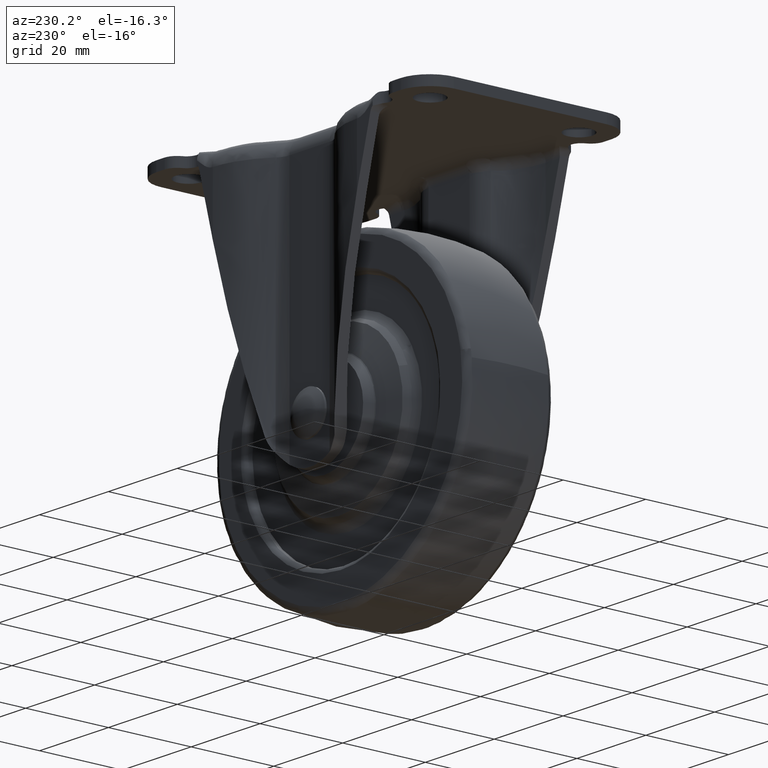
[diagram: clean part render]
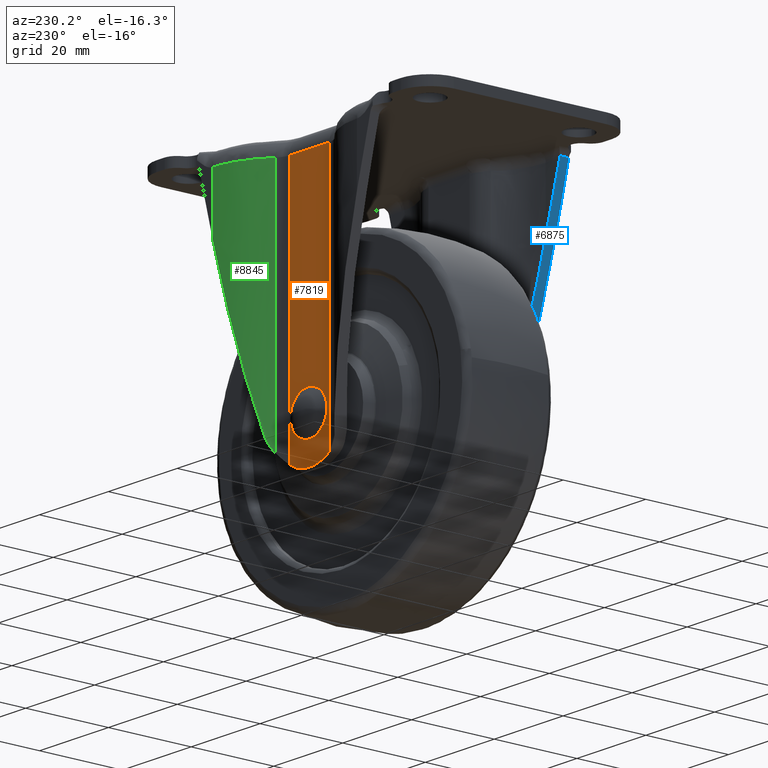
[diagram: same view with three faces highlighted in distinct colors, each labeled with its STEP entity id]
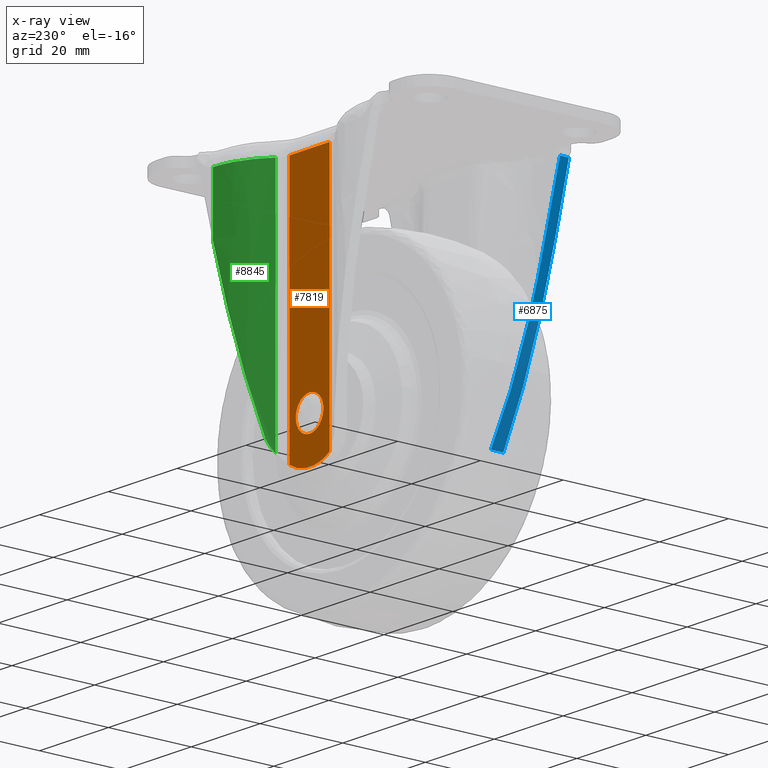
[diagram: x-ray of the same camera — body ghosted, the three highlighted faces saturated]
A machine part, auxiliary view with three faces highlighted in distinct colors.
The next image is the same camera in x-ray (body ghosted, the three faces saturated) — at least one of them is partly hidden behind the body in this view.
Their STEP definitions:

[orange] entity #7819 — the highlighted face is a freeform B-spline surface patch.
#3671=CARTESIAN_POINT('',(-3.999847692253771,18.0,-55.534906142327422));
#3672=VERTEX_POINT('',#3671);
#3678=CARTESIAN_POINT('',(0.0,18.0,-51.500000000000007));
#3679=VERTEX_POINT('',#3678);
#3680=CARTESIAN_POINT('',(0.0,18.0,-51.500000000000007));
#3681=CARTESIAN_POINT('',(-4.000000000000000,18.000000000000007,-51.500000000000000));
#3682=CARTESIAN_POINT('',(-4.0,18.0,-55.500000000000000));
#3683=CARTESIAN_POINT('',(-4.000000000000000,17.999999999999996,-55.517453403616734));
#3684=CARTESIAN_POINT('',(-3.999847692253770,18.000000000000004,-55.534906142327415));
#3692=(BOUNDED_CURVE()B_SPLINE_CURVE(2,(#3680,#3681,#3682,#3683,#3684),.UNSPECIFIED.,.F.,.U.)B_SPLINE_CURVE_WITH_KNOTS((3,2,3),(0.500000000000000,0.750000000000000,0.751539894364397),.UNSPECIFIED.)CURVE()GEOMETRIC_REPRESENTATION_ITEM()RATIONAL_B_SPLINE_CURVE((1.0,0.707106781186548,1.0,0.998195901531917,0.996414028032344))REPRESENTATION_ITEM(''));
#3693=EDGE_CURVE('',#3679,#3672,#3692,.T.);
#3695=CARTESIAN_POINT('',(3.969064855288949,18.0,-55.003487991575120));
#3696=VERTEX_POINT('',#3695);
#3697=CARTESIAN_POINT('',(3.969064855288950,18.000000000000007,-55.003487991575120));
#3698=CARTESIAN_POINT('',(3.530794400411641,18.0,-51.500000000000007));
#3699=CARTESIAN_POINT('',(0.0,18.0,-51.500000000000007));
#3707=(BOUNDED_CURVE()B_SPLINE_CURVE(2,(#3697,#3698,#3699),.UNSPECIFIED.,.F.,.U.)B_SPLINE_CURVE_WITH_KNOTS((3,3),(0.271473928979672,0.500000000000000),.UNSPECIFIED.)CURVE()GEOMETRIC_REPRESENTATION_ITEM()RATIONAL_B_SPLINE_CURVE((0.954005430257310,0.732265053904258,1.0))REPRESENTATION_ITEM(''));
#3708=EDGE_CURVE('',#3696,#3679,#3707,.T.);
#3758=CARTESIAN_POINT('',(0.0,18.0,-59.500000000000000));
#3759=VERTEX_POINT('',#3758);
#3760=CARTESIAN_POINT('',(0.0,18.0,-59.500000000000000));
#3761=CARTESIAN_POINT('',(4.000000000000000,18.000000000000007,-59.500000000000007));
#3762=CARTESIAN_POINT('',(4.0,18.0,-55.500000000000000));
#3763=CARTESIAN_POINT('',(4.000000000000001,18.000000000000004,-55.250780289759227));
#3764=CARTESIAN_POINT('',(3.969064855288949,18.0,-55.003487991575128));
#3772=(BOUNDED_CURVE()B_SPLINE_CURVE(2,(#3760,#3761,#3762,#3763,#3764),.UNSPECIFIED.,.F.,.U.)B_SPLINE_CURVE_WITH_KNOTS((3,2,3),(0.0,0.250000000000000,0.271473928979672),.UNSPECIFIED.)CURVE()GEOMETRIC_REPRESENTATION_ITEM()RATIONAL_B_SPLINE_CURVE((1.0,0.707106781186548,1.0,0.974841727282290,0.954005430257310))REPRESENTATION_ITEM(''));
#3773=EDGE_CURVE('',#3759,#3696,#3772,.T.);
#3775=CARTESIAN_POINT('',(-3.999847692253771,18.0,-55.534906142327415));
#3776=CARTESIAN_POINT('',(-3.965244841717835,18.000000000000007,-59.500000000000000));
#3777=CARTESIAN_POINT('',(0.0,18.0,-59.500000000000000));
#3785=(BOUNDED_CURVE()B_SPLINE_CURVE(2,(#3775,#3776,#3777),.UNSPECIFIED.,.F.,.U.)B_SPLINE_CURVE_WITH_KNOTS((3,3),(0.751539894364397,1.0),.UNSPECIFIED.)CURVE()GEOMETRIC_REPRESENTATION_ITEM()RATIONAL_B_SPLINE_CURVE((0.996414028032344,0.708910879654631,1.0))REPRESENTATION_ITEM(''));
#3786=EDGE_CURVE('',#3672,#3759,#3785,.T.);
#5296=CARTESIAN_POINT('',(-5.816739000000100,18.0,-4.300000000000000));
#5297=VERTEX_POINT('',#5296);
#5357=CARTESIAN_POINT('',(5.816738999999900,18.0,-4.300000000000000));
#5358=VERTEX_POINT('',#5357);
#5372=CARTESIAN_POINT('',(-5.816739000000100,18.0,-4.300000000000000));
#5373=CARTESIAN_POINT('',(5.816738999999900,18.0,-4.300000000000000));
#5374=QUASI_UNIFORM_CURVE('',1,(#5372,#5373),.UNSPECIFIED.,.F.,.U.);
#5375=EDGE_CURVE('',#5297,#5358,#5374,.T.);
#7222=CARTESIAN_POINT('',(-5.816739000000100,18.0,-64.241598580915792));
#7223=VERTEX_POINT('',#7222);
#7243=CARTESIAN_POINT('',(5.816738999999900,18.0,-64.241598580915891));
#7244=VERTEX_POINT('',#7243);
#7245=CARTESIAN_POINT('',(5.816738999999922,18.0,-64.241598580915920));
#7246=CARTESIAN_POINT('',(-1.265236E-013,17.999999999999996,-68.112109439349894));
#7247=CARTESIAN_POINT('',(-5.816739000000108,18.0,-64.241598580915806));
#7255=(BOUNDED_CURVE()B_SPLINE_CURVE(2,(#7245,#7246,#7247),.UNSPECIFIED.,.F.,.U.)CURVE()GEOMETRIC_REPRESENTATION_ITEM()QUASI_UNIFORM_CURVE()RATIONAL_B_SPLINE_CURVE((1.0,0.832533207203416,1.0))REPRESENTATION_ITEM(''));
#7256=EDGE_CURVE('',#7244,#7223,#7255,.T.);
#7783=CARTESIAN_POINT('',(5.816738999999900,18.0,-64.241598580915891));
#7784=CARTESIAN_POINT('',(5.816738999999900,18.0,-4.300000000000000));
#7785=QUASI_UNIFORM_CURVE('',1,(#7783,#7784),.UNSPECIFIED.,.F.,.U.);
#7786=EDGE_CURVE('',#7244,#5358,#7785,.T.);
#7798=CARTESIAN_POINT('',(-6.397831312758930,18.0,-1.218085124317845));
#7799=CARTESIAN_POINT('',(-6.397831312758930,18.0,-69.081916435885063));
#7800=CARTESIAN_POINT('',(6.397831520781528,18.0,-1.218085124317845));
#7801=CARTESIAN_POINT('',(6.397831520781529,18.0,-69.081916435885063));
#7802=B_SPLINE_SURFACE_WITH_KNOTS('',1,1,((#7798,#7800),(#7799,#7801)),.UNSPECIFIED.,.F.,.F.,.U.,(2,2),(2,2),(0.0,67.863831311567225),(0.0,12.795662833540460),.UNSPECIFIED.);
#7803=CARTESIAN_POINT('',(-5.816739000000100,18.0,-64.241598580915792));
#7804=CARTESIAN_POINT('',(-5.816739000000100,18.0,-4.300000000000000));
#7805=QUASI_UNIFORM_CURVE('',1,(#7803,#7804),.UNSPECIFIED.,.F.,.U.);
#7806=EDGE_CURVE('',#7223,#5297,#7805,.T.);
#7807=ORIENTED_EDGE('',*,*,#7806,.T.);
#7808=ORIENTED_EDGE('',*,*,#5375,.T.);
#7809=ORIENTED_EDGE('',*,*,#7786,.F.);
#7810=ORIENTED_EDGE('',*,*,#7256,.T.);
#7811=EDGE_LOOP('',(#7807,#7808,#7809,#7810));
#7812=FACE_OUTER_BOUND('',#7811,.T.);
#7813=ORIENTED_EDGE('',*,*,#3693,.T.);
#7814=ORIENTED_EDGE('',*,*,#3786,.T.);
#7815=ORIENTED_EDGE('',*,*,#3773,.T.);
#7816=ORIENTED_EDGE('',*,*,#3708,.T.);
#7817=EDGE_LOOP('',(#7813,#7814,#7815,#7816));
#7818=FACE_BOUND('',#7817,.T.);
#7819=ADVANCED_FACE('',(#7812,#7818),#7802,.F.);

[blue] entity #6875 — the highlighted face is a freeform B-spline surface patch.
#5901=CARTESIAN_POINT('',(-24.865689733738950,-21.801353907066900,-3.777851678252960));
#5902=VERTEX_POINT('',#5901);
#5916=CARTESIAN_POINT('',(-24.865689733738950,-24.0,-3.777851678253065));
#5917=VERTEX_POINT('',#5916);
#5918=CARTESIAN_POINT('',(-24.865689733738950,-24.0,-3.777851678253065));
#5919=CARTESIAN_POINT('',(-24.865689733738950,-21.801353907066900,-3.777851678252960));
#5920=QUASI_UNIFORM_CURVE('',1,(#5918,#5919),.UNSPECIFIED.,.F.,.U.);
#5921=EDGE_CURVE('',#5917,#5902,#5920,.T.);
#6392=CARTESIAN_POINT('',(-24.724472715595699,-21.864674502856349,-4.300000000000195));
#6393=VERTEX_POINT('',#6392);
#6394=CARTESIAN_POINT('',(-24.865689733738940,-21.801353907066890,-3.777851678253054));
#6395=CARTESIAN_POINT('',(-24.796327226925243,-21.867781752027525,-4.034318759920300));
#6396=CARTESIAN_POINT('',(-24.724472715595699,-21.864674502856360,-4.300000000000196));
#6404=(BOUNDED_CURVE()B_SPLINE_CURVE(2,(#6394,#6395,#6396),.UNSPECIFIED.,.F.,.U.)CURVE()GEOMETRIC_REPRESENTATION_ITEM()QUASI_UNIFORM_CURVE()RATIONAL_B_SPLINE_CURVE((1.0,0.991291770013556,1.0))REPRESENTATION_ITEM(''));
#6405=EDGE_CURVE('',#5902,#6393,#6404,.T.);
#6817=CARTESIAN_POINT('',(-9.400090938650175,-24.328992338789131,-60.961727685882821));
#6818=CARTESIAN_POINT('',(-25.601445766011999,-24.328992338789131,-1.057402099881168));
#6819=CARTESIAN_POINT('',(-9.400090938650175,-17.084574019986221,-60.961727685882821));
#6820=CARTESIAN_POINT('',(-25.601445766011999,-17.084574019986221,-1.057402099881168));
#6821=B_SPLINE_SURFACE_WITH_KNOTS('',1,1,((#6817,#6819),(#6818,#6820)),.UNSPECIFIED.,.F.,.F.,.U.,(2,2),(2,2),(0.0,62.056523606755263),(0.0,7.244418318802911),.UNSPECIFIED.);
#6822=CARTESIAN_POINT('',(-20.916408000000100,-24.0,-18.380276063724398));
#6823=VERTEX_POINT('',#6822);
#6824=CARTESIAN_POINT('',(-20.916408000000100,-24.0,-18.380276063724398));
#6825=CARTESIAN_POINT('',(-24.865689733738950,-24.0,-3.777851678253065));
#6826=QUASI_UNIFORM_CURVE('',1,(#6824,#6825),.UNSPECIFIED.,.F.,.U.);
#6827=EDGE_CURVE('',#6823,#5917,#6826,.T.);
#6828=ORIENTED_EDGE('',*,*,#6827,.T.);
#6829=ORIENTED_EDGE('',*,*,#5921,.T.);
#6830=ORIENTED_EDGE('',*,*,#6405,.T.);
#6831=CARTESIAN_POINT('',(-20.916408000000100,-21.699999999999999,-18.380276063724150));
#6832=VERTEX_POINT('',#6831);
#6833=CARTESIAN_POINT('',(-24.724472715595699,-21.864674502856349,-4.300000000000195));
#6834=CARTESIAN_POINT('',(-20.916408000000100,-21.699999999999999,-18.380276063724150));
#6835=QUASI_UNIFORM_CURVE('',1,(#6833,#6834),.UNSPECIFIED.,.F.,.U.);
#6836=EDGE_CURVE('',#6393,#6832,#6835,.T.);
#6837=ORIENTED_EDGE('',*,*,#6836,.T.);
#6838=CARTESIAN_POINT('',(-10.135846839228160,-17.413566535437251,-58.241278594452012));
#6839=VERTEX_POINT('',#6838);
#6840=CARTESIAN_POINT('',(-10.135846839228160,-17.413566535437251,-58.241278594452012));
#6841=CARTESIAN_POINT('',(-14.673968075952995,-21.699999999999992,-41.461626830119705));
#6842=CARTESIAN_POINT('',(-20.916408000000100,-21.699999999999999,-18.380276063724160));
#6850=(BOUNDED_CURVE()B_SPLINE_CURVE(2,(#6840,#6841,#6842),.UNSPECIFIED.,.F.,.U.)CURVE()GEOMETRIC_REPRESENTATION_ITEM()QUASI_UNIFORM_CURVE()RATIONAL_B_SPLINE_CURVE((1.0,0.929241292727280,1.0))REPRESENTATION_ITEM(''));
#6851=EDGE_CURVE('',#6839,#6832,#6850,.T.);
#6852=ORIENTED_EDGE('',*,*,#6851,.F.);
#6853=CARTESIAN_POINT('',(-10.135846839228160,-20.414558649464499,-58.241278594452012));
#6854=VERTEX_POINT('',#6853);
#6855=CARTESIAN_POINT('',(-10.135846839228160,-20.414558649464499,-58.241278594452012));
#6856=CARTESIAN_POINT('',(-10.135846839228160,-17.413566535437251,-58.241278594452012));
#6857=QUASI_UNIFORM_CURVE('',1,(#6855,#6856),.UNSPECIFIED.,.F.,.U.);
#6858=EDGE_CURVE('',#6854,#6839,#6857,.T.);
#6859=ORIENTED_EDGE('',*,*,#6858,.F.);
#6860=CARTESIAN_POINT('',(-10.135846839228160,-20.414558649464499,-58.241278594452012));
#6861=CARTESIAN_POINT('',(-14.929897340009859,-24.000000000000004,-40.515331281110655));
#6862=CARTESIAN_POINT('',(-20.916408000000040,-24.0,-18.380276063724398));
#6870=(BOUNDED_CURVE()B_SPLINE_CURVE(2,(#6860,#6861,#6862),.UNSPECIFIED.,.F.,.U.)CURVE()GEOMETRIC_REPRESENTATION_ITEM()QUASI_UNIFORM_CURVE()RATIONAL_B_SPLINE_CURVE((1.0,0.948896415279107,1.0))REPRESENTATION_ITEM(''));
#6871=EDGE_CURVE('',#6854,#6823,#6870,.T.);
#6872=ORIENTED_EDGE('',*,*,#6871,.T.);
#6873=EDGE_LOOP('',(#6828,#6829,#6830,#6837,#6852,#6859,#6872));
#6874=FACE_OUTER_BOUND('',#6873,.T.);
#6875=ADVANCED_FACE('',(#6874),#6821,.T.);

[green] entity #8845 — the highlighted face is a freeform B-spline surface patch.
#5405=CARTESIAN_POINT('',(8.562133328561540,19.090909080021451,-4.300000000000000));
#5406=VERTEX_POINT('',#5405);
#5469=CARTESIAN_POINT('',(20.916407000000000,24.0,-4.300000000000000));
#5470=VERTEX_POINT('',#5469);
#5484=CARTESIAN_POINT('',(8.562133328561540,19.090909080021451,-4.300000000000000));
#5485=CARTESIAN_POINT('',(13.763932629208602,23.999999999999996,-4.300000000000000));
#5486=CARTESIAN_POINT('',(20.916407000000000,24.0,-4.300000000000000));
#5494=(BOUNDED_CURVE()B_SPLINE_CURVE(2,(#5484,#5485,#5486),.UNSPECIFIED.,.F.,.U.)CURVE()GEOMETRIC_REPRESENTATION_ITEM()QUASI_UNIFORM_CURVE()RATIONAL_B_SPLINE_CURVE((1.0,0.929320383616185,1.0))REPRESENTATION_ITEM(''));
#5495=EDGE_CURVE('',#5406,#5470,#5494,.T.);
#7148=CARTESIAN_POINT('',(20.916406999999950,24.0,-18.380279761212801));
#7149=VERTEX_POINT('',#7148);
#7179=CARTESIAN_POINT('',(10.135846999999981,20.414559517598850,-58.241277999999902));
#7180=VERTEX_POINT('',#7179);
#7186=CARTESIAN_POINT('',(10.135846999999981,20.414559517598850,-58.241277999999902));
#7187=CARTESIAN_POINT('',(14.929897144925622,23.999999999999996,-40.515332002432459));
#7188=CARTESIAN_POINT('',(20.916406999999950,24.0,-18.380279761212801));
#7196=(BOUNDED_CURVE()B_SPLINE_CURVE(2,(#7186,#7187,#7188),.UNSPECIFIED.,.F.,.U.)CURVE()GEOMETRIC_REPRESENTATION_ITEM()QUASI_UNIFORM_CURVE()RATIONAL_B_SPLINE_CURVE((1.0,0.948896427985905,1.0))REPRESENTATION_ITEM(''));
#7197=EDGE_CURVE('',#7180,#7149,#7196,.T.);
#7258=CARTESIAN_POINT('',(8.562133128488011,19.090909712761601,-61.577818287729997));
#7259=VERTEX_POINT('',#7258);
#7281=CARTESIAN_POINT('',(10.135846999999959,20.414559517598850,-58.241277999999902));
#7282=CARTESIAN_POINT('',(10.050626453382280,20.350823597335520,-58.556380077179533));
#7283=CARTESIAN_POINT('',(9.952214360985888,20.276066127372012,-58.862092037219618));
#7284=CARTESIAN_POINT('',(9.731569995846938,20.103864913173201,-59.455600947674917));
#7285=CARTESIAN_POINT('',(9.609327804392201,20.006416373739121,-59.743392040465842));
#7286=CARTESIAN_POINT('',(9.343046909981537,19.787206961421230,-60.301357224112522));
#7287=CARTESIAN_POINT('',(9.199000884256464,19.665445522971059,-60.571528015032882));
#7288=CARTESIAN_POINT('',(9.006422730124800,19.496477323925571,-60.898157046478921));
#7289=CARTESIAN_POINT('',(8.967317405927599,19.461874203093199,-60.962860000997409));
#7290=CARTESIAN_POINT('',(8.888387665048294,19.391398361078782,-61.090365421044702));
#7291=CARTESIAN_POINT('',(8.768743798425625,19.283630942871710,-61.279063653245537));
#7292=CARTESIAN_POINT('',(8.645592182470548,19.169672459780820,-61.460245256420059));
#7293=CARTESIAN_POINT('',(8.562133128488030,19.090909712761619,-61.577818287730032));
#7294=B_SPLINE_CURVE_WITH_KNOTS('',3,(#7281,#7282,#7283,#7284,#7285,#7286,#7287,#7288,#7289,#7290,#7291,#7292,#7293),.UNSPECIFIED.,.F.,.U.,(4,2,2,2,2,1,4),(0.0,0.250000000000001,0.500000000000003,0.750000000000004,0.812500000000004,0.875000000000004,1.0),.UNSPECIFIED.);
#7295=EDGE_CURVE('',#7180,#7259,#7294,.T.);
#7789=CARTESIAN_POINT('',(8.562133128488011,19.090909712761601,-61.577818287729997));
#7790=CARTESIAN_POINT('',(8.562133328561540,19.090909080021451,-4.300000000000000));
#7791=QUASI_UNIFORM_CURVE('',1,(#7789,#7790),.UNSPECIFIED.,.F.,.U.);
#7792=EDGE_CURVE('',#7259,#5406,#7791,.T.);
#8811=CARTESIAN_POINT('',(20.916406999999950,24.0,-18.380279761212801));
#8812=CARTESIAN_POINT('',(20.916407000000000,24.0,-4.300000000000000));
#8813=QUASI_UNIFORM_CURVE('',1,(#8811,#8812),.UNSPECIFIED.,.F.,.U.);
#8814=EDGE_CURVE('',#7149,#5470,#8813,.T.);
#8824=CARTESIAN_POINT('',(8.089942343455956,18.628610549637923,-63.009763744923248));
#8825=CARTESIAN_POINT('',(8.089942343455956,18.628610549637923,-2.832255906376916));
#8826=CARTESIAN_POINT('',(13.653736025369314,24.279572920902968,-63.009763744923262));
#8827=CARTESIAN_POINT('',(13.653736025369314,24.279572920902968,-2.832255906376916));
#8828=CARTESIAN_POINT('',(21.578636818120831,23.987813976912026,-63.009763744923248));
#8829=CARTESIAN_POINT('',(21.578636818120831,23.987813976912026,-2.832255906376915));
#8837=(BOUNDED_SURFACE()B_SPLINE_SURFACE(1,2,((#8824,#8826,#8828),(#8825,#8827,#8829)),.UNSPECIFIED.,.F.,.F.,.U.)B_SPLINE_SURFACE_WITH_KNOTS((2,2),(3,3),(0.0,60.177507838546340),(0.0,15.157600101468541),.UNSPECIFIED.)GEOMETRIC_REPRESENTATION_ITEM()RATIONAL_B_SPLINE_SURFACE(((0.998511398488992,0.912663984601427,0.996117036745112),(0.998511398488992,0.912663984601427,0.996117036745112)))REPRESENTATION_ITEM('')SURFACE());
#8838=ORIENTED_EDGE('',*,*,#7792,.T.);
#8839=ORIENTED_EDGE('',*,*,#5495,.T.);
#8840=ORIENTED_EDGE('',*,*,#8814,.F.);
#8841=ORIENTED_EDGE('',*,*,#7197,.F.);
#8842=ORIENTED_EDGE('',*,*,#7295,.T.);
#8843=EDGE_LOOP('',(#8838,#8839,#8840,#8841,#8842));
#8844=FACE_OUTER_BOUND('',#8843,.T.);
#8845=ADVANCED_FACE('',(#8844),#8837,.T.);